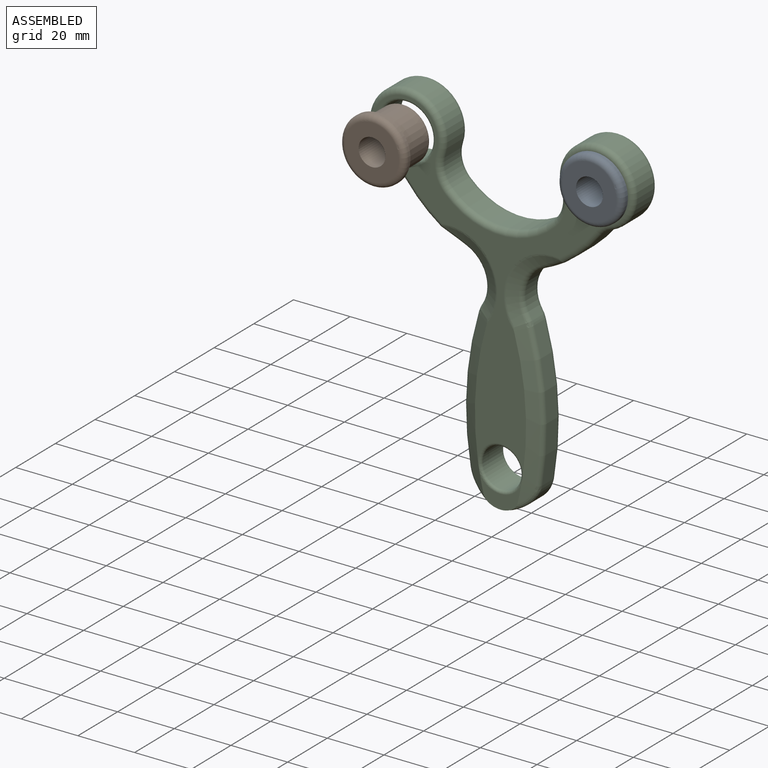
[diagram: assembled view]
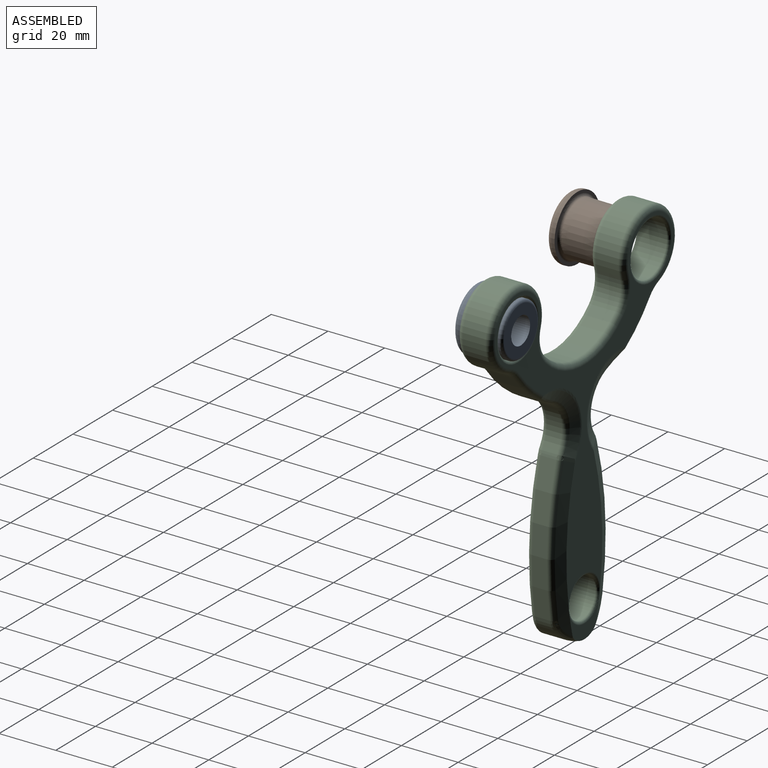
[diagram: assembled view, second angle]
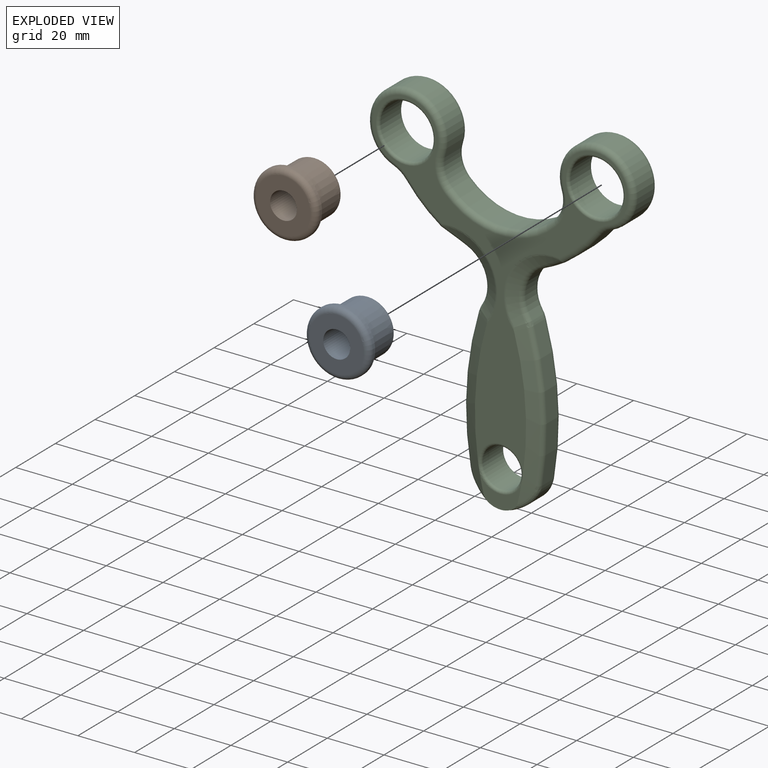
[diagram: exploded view]
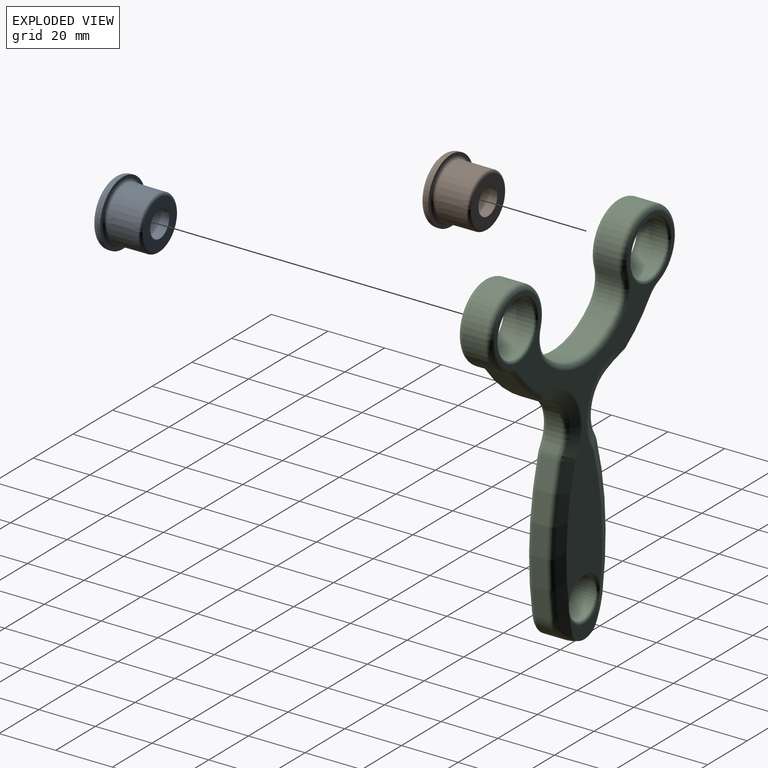
[diagram: exploded view, second angle]
ASSEMBLY  parts=3 mates=2
PART A: 9 faces, bbox 24.9x16x24.9 mm
  f0: cone r=9.4mm half-angle=0.4deg, axis (0,1,0), area 654.1mm2, adj f6,f7
  f1: plane 16.82x16.82mm, normal (0,-1,0), area 151.2mm2, adj f2,f6
  f2: cylinder r=4.75mm len=16mm, axis (0,1,0), area 477.5mm2, adj f1,f3
  f3: plane 19x19mm, normal (0,1,0), area 212.6mm2, adj f2,f8
  f4: cylinder r=11.5mm len=23mm, axis (0,1,0), area 72.3mm2, adj f5,f8
  f5: plane 23x23mm, normal (0,-1,0), area 69.6mm2, adj f4,f7
  f6: torus R=8.41mm, axis (0,1,0), area 88.8mm2, adj f0,f1
  f7: torus R=10.49mm, axis (0,1,0), area 96.8mm2, adj f0,f5
  f8: torus R=9.5mm, axis (0,1,0), area 212.7mm2, adj f3,f4
PART B: same geometry as A
PART C: 93 faces, bbox 96.9x17.2x126.8 mm
  f0: plane 109.33x90mm, normal (0,-1,0), area 1418.2mm2, adj f14,f15,f18,f24,f25,f26,f27,f28
  f1: plane 15.36x10.5mm, normal (0,1,0), area 65.3mm2, adj f6,f12,f17,f51,f60,f92
  f2: cylinder r=13.5mm len=27mm, axis (0,1,0), area 503.5mm2, adj f22,f23,f26,f31
  f3: cylinder r=53mm len=20.54mm, axis (0,1,0), area 198.5mm2, adj f4,f22,f28,f33,f40,f45
  f4: cylinder r=11.77mm len=17.06mm, axis (0,1,0), area 107mm2, adj f3,f20,f39,f46
  f5: cylinder r=110mm len=50.23mm, axis (0,1,0), area 268.6mm2, adj f20,f21,f36,f49
  f6: cylinder r=13mm len=22.11mm, axis (0,1,0), area 222.2mm2, adj f1,f10,f21,f34,f51,f64,f75,f92
  f7: cylinder r=7mm len=14mm, axis (0,1,0), area 439.8mm2, adj f12,f14
  f8: cylinder r=25.79mm len=36.53mm, axis (0,1,0), area 324.7mm2, adj f23,f24,f29,f66
  f9: cylinder r=9.5mm len=19mm, axis (0,1,0), area 596.9mm2, adj f13,f15
  f10: plane 15.36x10.5mm, normal (0,-1,0), area 65.3mm2, adj f6,f14,f18,f34,f61,f75
  f11: plane 109.33x90mm, normal (0,1,0), area 1418.2mm2, adj f12,f13,f17,f29,f30,f31,f32,f33
  f12: torus R=8mm, axis (0,-1,0), area 71.7mm2, adj f1,f7,f11,f17,f60
  f13: torus R=10.5mm, axis (0,-1,0), area 97.3mm2, adj f9,f11
  f14: torus R=8mm, axis (0,-1,0), area 71.7mm2, adj f0,f7,f10,f18,f61
  f15: torus R=10.5mm, axis (0,-1,0), area 97.3mm2, adj f0,f9
  f16: cone r=16.77mm half-angle=68.2deg, axis (0,1,0), area 116.6mm2, adj f17,f43,f45,f46,f47
  f17: cone r=110mm half-angle=68.2deg, axis (0,-1,0), area 223.9mm2, adj f1,f11,f12,f16,f43,f47,f48,f49
  f18: cone r=105mm half-angle=68.2deg, axis (0,1,0), area 223.9mm2, adj f0,f10,f14,f19,f34,f35,f36,f37
  f19: cone r=11.77mm half-angle=68.2deg, axis (0,-1,0), area 116.6mm2, adj f18,f38,f39,f40,f42
  f20: cylinder r=10mm len=5.36mm, axis (0,-1,0), area 14.7mm2, adj f4,f5,f37,f38,f47,f48
  f21: cylinder r=10mm len=5.72mm, axis (0,1,0), area 21mm2, adj f5,f6,f35,f50
  f22: cylinder r=10mm len=8mm, axis (0,-1,0), area 43.8mm2, adj f2,f3,f27,f32
  f23: cylinder r=10mm len=10.19mm, axis (0,1,0), area 88.2mm2, adj f2,f8,f25,f30
  f24: torus R=27.79mm, axis (0,-1,0), area 131.1mm2, adj f0,f8,f25,f67
  f25: torus R=12mm, axis (0,-1,0), area 37.2mm2, adj f0,f23,f24,f26
  f26: torus R=11.5mm, axis (0,-1,0), area 187.1mm2, adj f0,f2,f25,f27
  f27: torus R=12mm, axis (0,-1,0), area 18.5mm2, adj f0,f22,f26,f28
  f28: torus R=51mm, axis (0,-1,0), area 52.6mm2, adj f0,f3,f27,f41
  f29: torus R=27.79mm, axis (0,-1,0), area 131.1mm2, adj f8,f11,f30,f71
  f30: torus R=12mm, axis (0,-1,0), area 37.2mm2, adj f11,f23,f29,f31
  f31: torus R=11.5mm, axis (0,-1,0), area 187.1mm2, adj f2,f11,f30,f32
  f32: torus R=12mm, axis (0,-1,0), area 18.5mm2, adj f11,f22,f31,f33
  f33: torus R=51mm, axis (0,-1,0), area 52.6mm2, adj f3,f11,f32,f44
  f34: bspline ~12.98x8.12mm, area 25.2mm2, adj f6,f10,f18,f35
  f35: bspline ~6.16x2.72mm, area 8.4mm2, adj f18,f21,f34,f36
  f36: torus R=108mm, axis (0,-1,0), area 120.4mm2, adj f5,f18,f35,f37
  f37: bspline ~4.98x2.72mm, area 3.6mm2, adj f18,f20,f36,f38
  f38: bspline ~3.62x2.91mm, area 2.7mm2, adj f18,f19,f20,f37,f39
  f39: torus R=13.77mm, axis (0,1,0), area 49.9mm2, adj f4,f19,f38,f40
  f40: bspline ~13.73x8.28mm, area 22.6mm2, adj f3,f19,f39,f41
  f41: sphere r=2mm, area 0.9mm2, adj f28,f40,f42
  f42: torus R=17.15mm, axis (0,-1,0), area 29.8mm2, adj f0,f18,f19,f41
  f43: torus R=17.15mm, axis (0,-1,0), area 29.8mm2, adj f11,f16,f17,f44
  f44: sphere r=2mm, area 0.9mm2, adj f33,f43,f45
  f45: bspline ~13.73x8.28mm, area 22.6mm2, adj f3,f16,f44,f46
  f46: torus R=13.77mm, axis (0,-1,0), area 49.9mm2, adj f4,f16,f45,f47
  f47: bspline ~3.62x2.91mm, area 2.7mm2, adj f16,f17,f20,f46,f48
  f48: bspline ~4.98x2.72mm, area 3.6mm2, adj f17,f20,f47,f49
  f49: torus R=108mm, axis (0,1,0), area 120.4mm2, adj f5,f17,f48,f50
  f50: bspline ~7.43x3.57mm, area 8.4mm2, adj f17,f21,f49,f51
  f51: bspline ~12.98x8.12mm, area 25.2mm2, adj f1,f6,f17,f50
  f52: cylinder r=13.5mm len=27mm, axis (0,1,0), area 503.5mm2, adj f65,f66,f68,f72
  f53: cylinder r=53mm len=20.54mm, axis (0,1,0), area 198.5mm2, adj f54,f65,f70,f74,f81,f86
  f54: cylinder r=11.77mm len=17.06mm, axis (0,1,0), area 107mm2, adj f53,f63,f80,f87
  f55: cylinder r=110mm len=50.23mm, axis (0,1,0), area 268.6mm2, adj f63,f64,f77,f90
  f56: cylinder r=9.5mm len=19mm, axis (0,1,0), area 596.9mm2, adj f57,f58
  f57: torus R=10.5mm, axis (0,-1,0), area 97.3mm2, adj f11,f56
  f58: torus R=10.5mm, axis (0,-1,0), area 97.3mm2, adj f0,f56
  f59: cone r=16.77mm half-angle=68.2deg, axis (0,1,0), area 116.6mm2, adj f60,f84,f86,f87,f88
  f60: cone r=110mm half-angle=68.2deg, axis (0,-1,0), area 223.9mm2, adj f1,f11,f12,f59,f84,f88,f89,f90
  f61: cone r=105mm half-angle=68.2deg, axis (0,1,0), area 223.9mm2, adj f0,f10,f14,f62,f75,f76,f77,f78
  f62: cone r=11.77mm half-angle=68.2deg, axis (0,-1,0), area 116.6mm2, adj f61,f79,f80,f81,f83
  f63: cylinder r=10mm len=5.36mm, axis (0,-1,0), area 14.7mm2, adj f54,f55,f78,f79,f88,f89
  f64: cylinder r=10mm len=5.72mm, axis (0,1,0), area 21mm2, adj f6,f55,f76,f91
  f65: cylinder r=10mm len=8mm, axis (0,-1,0), area 43.8mm2, adj f52,f53,f69,f73
  f66: cylinder r=10mm len=10.19mm, axis (0,1,0), area 88.2mm2, adj f8,f52,f67,f71
  f67: torus R=12mm, axis (0,-1,0), area 37.2mm2, adj f0,f24,f66,f68
  f68: torus R=11.5mm, axis (0,-1,0), area 187.1mm2, adj f0,f52,f67,f69
  f69: torus R=12mm, axis (0,-1,0), area 18.5mm2, adj f0,f65,f68,f70
  f70: torus R=51mm, axis (0,-1,0), area 52.6mm2, adj f0,f53,f69,f82
  f71: torus R=12mm, axis (0,-1,0), area 37.2mm2, adj f11,f29,f66,f72
  f72: torus R=11.5mm, axis (0,-1,0), area 187.1mm2, adj f11,f52,f71,f73
  f73: torus R=12mm, axis (0,-1,0), area 18.5mm2, adj f11,f65,f72,f74
  f74: torus R=51mm, axis (0,-1,0), area 52.6mm2, adj f11,f53,f73,f85
  f75: bspline ~13.49x9.19mm, area 25.2mm2, adj f6,f10,f61,f76
  f76: bspline ~5.92x2.6mm, area 8.4mm2, adj f61,f64,f75,f77
  f77: torus R=108mm, axis (0,-1,0), area 120.4mm2, adj f55,f61,f76,f78
  f78: bspline ~4.98x2.72mm, area 3.6mm2, adj f61,f63,f77,f79
  f79: bspline ~3.62x2.91mm, area 2.7mm2, adj f61,f62,f63,f78,f80
  f80: torus R=13.77mm, axis (0,1,0), area 49.9mm2, adj f54,f62,f79,f81
  f81: bspline ~13.73x8.28mm, area 22.6mm2, adj f53,f62,f80,f82
  f82: sphere r=2mm, area 0.9mm2, adj f70,f81,f83
  f83: torus R=17.15mm, axis (0,-1,0), area 29.8mm2, adj f0,f61,f62,f82
  f84: torus R=17.15mm, axis (0,-1,0), area 29.8mm2, adj f11,f59,f60,f85
  f85: sphere r=2mm, area 0.9mm2, adj f74,f84,f86
  f86: bspline ~13.73x8.28mm, area 22.6mm2, adj f53,f59,f85,f87
  f87: torus R=13.77mm, axis (0,-1,0), area 49.9mm2, adj f54,f59,f86,f88
  f88: bspline ~3.62x2.91mm, area 2.7mm2, adj f59,f60,f63,f87,f89
  f89: bspline ~4.98x2.72mm, area 3.6mm2, adj f60,f63,f88,f90
  f90: torus R=108mm, axis (0,1,0), area 120.4mm2, adj f55,f60,f89,f91
  f91: bspline ~6.59x2.99mm, area 8.4mm2, adj f60,f64,f90,f92
  f92: bspline ~13.49x9.19mm, area 25.2mm2, adj f1,f6,f60,f91
PLACE A rot(axis=(1,0,0),180deg) t=(-12.19,-37.53,12.59)mm
PLACE B rot(axis=(1,0,0),180deg) t=(-79.19,-51.43,12.59)mm
PLACE C t=(-45.69,-15.45,-7.41)mm
MATE slider A.f0 <-> C.f52  axis (0,-1,0) through (-12.19,-14.45,12.59)mm
MATE slider B.f0 <-> C.f2  axis (0,-1,0) through (-79.19,-44.35,12.59)mm
